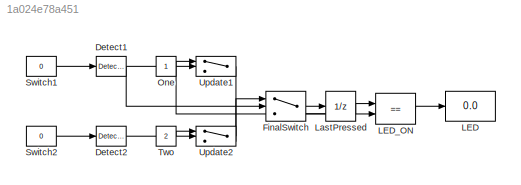
MODEL slx_1a024e78a451
KIND model
CONFIG AbsTol = auto
CONFIG EnableMultiTasking = off
CONFIG FixedStep = 1
CONFIG MaxStep = auto
CONFIG MinStep = auto
CONFIG RelTol = 1e-3
CONFIG SampleTimeConstraint = Unconstrained
CONFIG SolverName = FixedStepDiscrete
CONFIG StartTime = 0.0
CONFIG StopTime = 10
BLOCK [Reference] Detect1  REF=simulink/Logic and Bit
Operations/Detect
Change
  SourceBlock = simulink/Logic and Bit\nOperations/Detect\nChange
  SourceType = Detect Change
BLOCK [Reference] Detect2  REF=simulink/Logic and Bit
Operations/Detect
Change
  SourceBlock = simulink/Logic and Bit\nOperations/Detect\nChange
  SourceType = Detect Change
BLOCK [Switch] FinalSwitch
  Criteria = u2 ~= 0
  InputSameDT = off
  SaturateOnIntegerOverflow = off
  Threshold = 0.5
BLOCK [Display] LED
  Decimation = 1
BLOCK [RelationalOperator] LED_ON
  InputSameDT = off
  Operator = ==
  OutDataTypeStr = boolean
  RndMeth = Simplest
BLOCK [UnitDelay] LastPressed
  HasFrameUpgradeWarning = on
BLOCK [Constant] One
BLOCK [Constant] Switch1
  Value = 0
BLOCK [Constant] Switch2
  Value = 0
BLOCK [Constant] Two
  Value = 2
BLOCK [Switch] Update1
  Criteria = u2 ~= 0
  InputSameDT = off
  SaturateOnIntegerOverflow = off
  Threshold = 0.5
BLOCK [Switch] Update2
  Criteria = u2 ~= 0
  InputSameDT = off
  SaturateOnIntegerOverflow = off
  Threshold = 0.5
NET Detect1:1 -> FinalSwitch:2, Update1:2
LINE Detect2:1 -> Update2:2
LINE FinalSwitch:1 -> LastPressed:1
LINE LED_ON:1 -> LED:1
NET LastPressed:1 -> FinalSwitch:3, LED_ON:1
NET One:1 -> LED_ON:2, Update1:1
LINE Switch1:1 -> Detect1:1
LINE Switch2:1 -> Detect2:1
LINE Two:1 -> Update2:1
LINE Update1:1 -> Update2:3
LINE Update2:1 -> FinalSwitch:1
note: NET lines group one-source signal fan-out (src -> all destinations, sorted); 1:1 wires keep LINE
